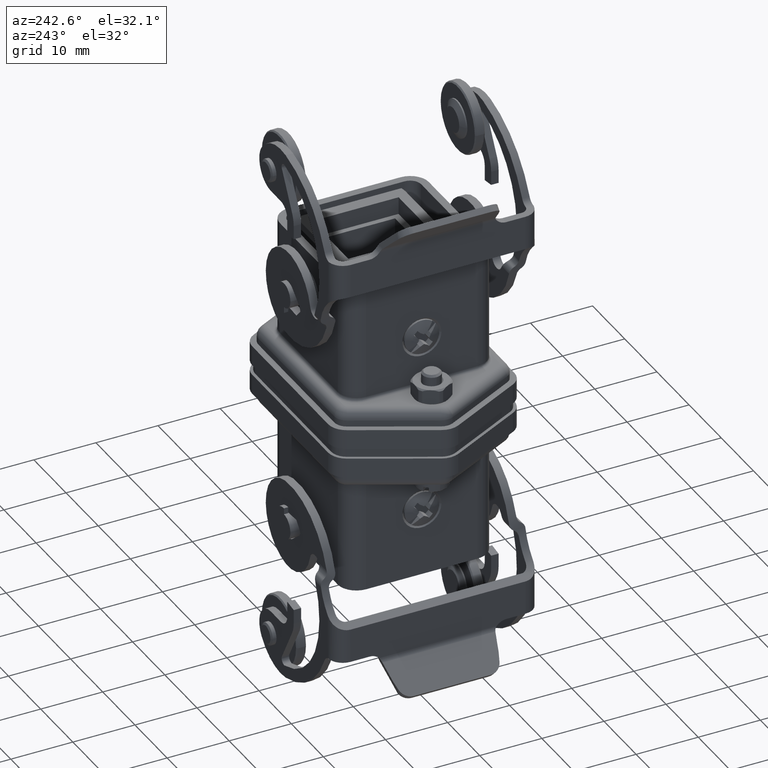
[diagram: clean part render]
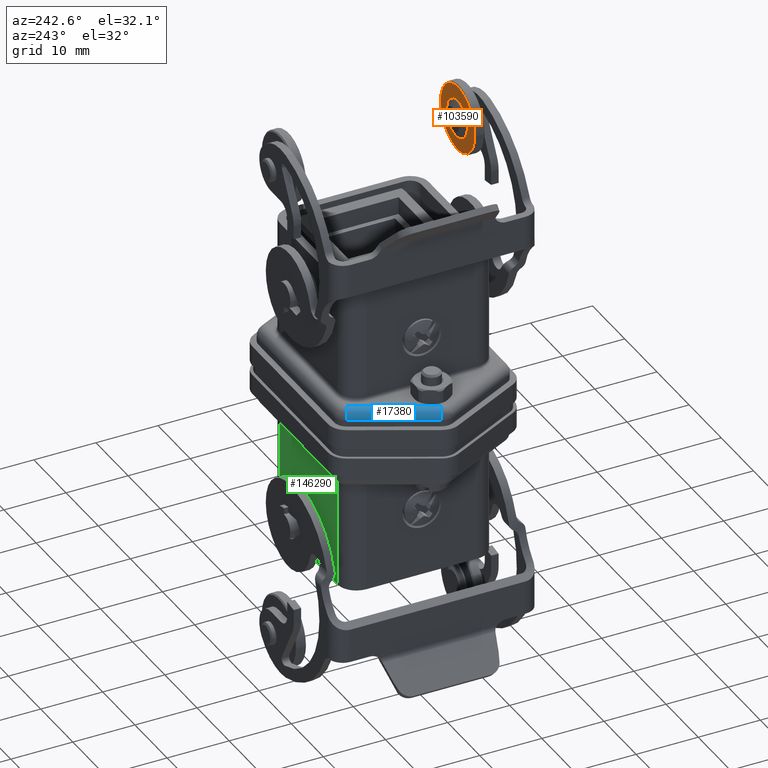
[diagram: same view with three faces highlighted in distinct colors, each labeled with its STEP entity id]
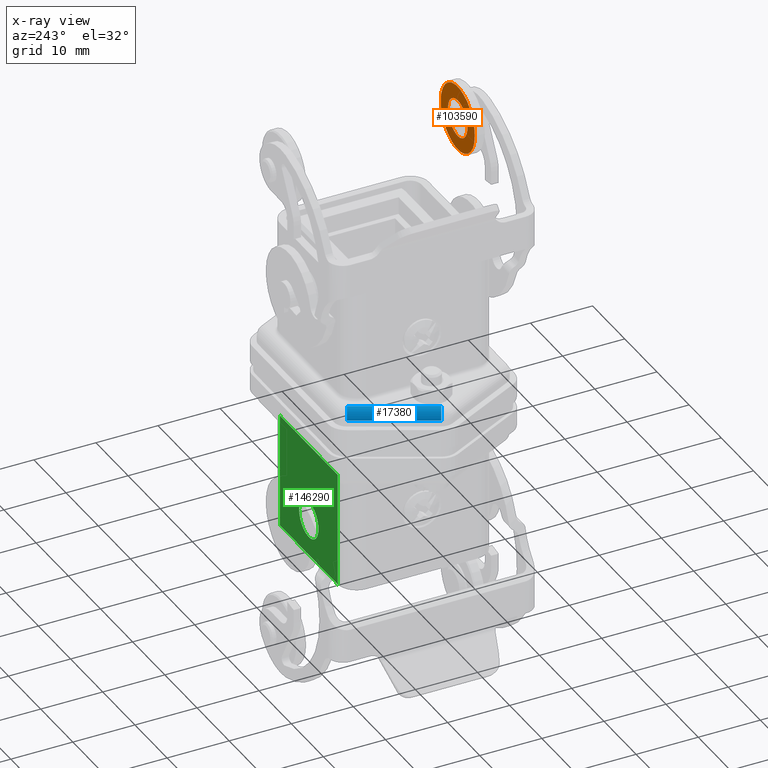
[diagram: x-ray of the same camera — body ghosted, the three highlighted faces saturated]
A machine part, auxiliary view with three faces highlighted in distinct colors.
The next image is the same camera in x-ray (body ghosted, the three faces saturated) — at least one of them is partly hidden behind the body in this view.
Their STEP definitions:

[orange] entity #103590 — the highlighted planar face has unit normal (0, -1, 0).
#10960=CARTESIAN_POINT('',(8.40000000008975,-13.5999999999103,19.6));
#10970=VERTEX_POINT('',#10960);
#11060=CARTESIAN_POINT('',(-2.20000000008978,-13.5999999999103,19.6));
#11070=VERTEX_POINT('',#11060);
#11100=CARTESIAN_POINT('',(3.1,-13.6,19.6));
#11110=DIRECTION('',(0.,-1.,0.));
#11120=DIRECTION('',(-1.,0.,0.));
#11130=AXIS2_PLACEMENT_3D('',#11100,#11110,#11120);
#11140=CIRCLE('',#11130,5.3);
#11150=EDGE_CURVE('',#10970,#11070,#11140,.T.);
#11790=CARTESIAN_POINT('',(3.1,-13.6,22.6));
#11800=VERTEX_POINT('',#11790);
#11830=CARTESIAN_POINT('',(3.1,-13.6,19.6));
#11840=DIRECTION('',(0.,-1.,0.));
#11850=DIRECTION('',(0.,0.,1.));
#11860=AXIS2_PLACEMENT_3D('',#11830,#11840,#11850);
#11870=CIRCLE('',#11860,3.);
#11880=CARTESIAN_POINT('',(3.1,-13.6,16.6));
#11890=VERTEX_POINT('',#11880);
#11900=EDGE_CURVE('',#11800,#11890,#11870,.T.);
#103440=CARTESIAN_POINT('',(3.1,-13.6,19.6));
#103450=DIRECTION('',(0.,-1.,0.));
#103460=DIRECTION('',(0.,0.,-1.));
#103470=AXIS2_PLACEMENT_3D('',#103440,#103450,#103460);
#103480=PLANE('',#103470);
#103490=EDGE_CURVE('',#11070,#10970,#11140,.T.);
#103500=ORIENTED_EDGE('',*,*,#103490,.F.);
#103510=ORIENTED_EDGE('',*,*,#11150,.F.);
#103520=EDGE_LOOP('',(#103510,#103500));
#103530=FACE_OUTER_BOUND('',#103520,.T.);
#103540=EDGE_CURVE('',#11890,#11800,#11870,.T.);
#103550=ORIENTED_EDGE('',*,*,#103540,.T.);
#103560=ORIENTED_EDGE('',*,*,#11900,.T.);
#103570=EDGE_LOOP('',(#103560,#103550));
#103580=FACE_BOUND('',#103570,.T.);
#103590=ADVANCED_FACE('',(#103530,#103580),#103480,.F.);

[blue] entity #17380 — the highlighted cylindrical surface (edge-blend (fillet) strip) has radius 1.5 mm, axis along (0.4581, 0.8889, 0).
#16970=CARTESIAN_POINT('',(-16.5555555555556,3.89404420197224,-14.5));
#16980=DIRECTION('',(0.458122847290852,0.888888888888889,1.02317E-32));
#16990=DIRECTION('',(-0.628539361054707,0.32394177193585,
0.707106781186549));
#17000=AXIS2_PLACEMENT_3D('',#16970,#16980,#16990);
#17010=CYLINDRICAL_SURFACE('',#17000,1.5);
#17020=CARTESIAN_POINT('',(-13.5931193393513,12.9162456945817,-14.5));
#17030=DIRECTION('',(-0.458122847290851,-0.888888888888889,0.));
#17040=VECTOR('',#17030,13.5);
#17050=LINE('',#17020,#17040);
#17060=CARTESIAN_POINT('',(-13.5931193393513,12.9162456945817,-14.5));
#17070=VERTEX_POINT('',#17060);
#17080=CARTESIAN_POINT('',(-19.7777777777778,0.916245694581701,-14.5));
#17090=VERTEX_POINT('',#17080);
#17100=EDGE_CURVE('',#17070,#17090,#17050,.T.);
#17110=ORIENTED_EDGE('',*,*,#17100,.T.);
#17120=CARTESIAN_POINT('',(-12.259786006018,12.2290614236454,-14.5));
#17130=DIRECTION('',(-0.458122847290852,-0.888888888888889,0.));
#17140=DIRECTION('',(0.,0.,1.));
#17150=AXIS2_PLACEMENT_3D('',#17120,#17130,#17140);
#17160=CIRCLE('',#17150,1.5);
#17170=CARTESIAN_POINT('',(-12.259786006018,12.2290614236454,-13.));
#17180=VERTEX_POINT('',#17170);
#17190=EDGE_CURVE('',#17180,#17070,#17160,.T.);
#17200=ORIENTED_EDGE('',*,*,#17190,.T.);
#17210=CARTESIAN_POINT('',(-18.4444444444445,0.229061423645427,-13.));
#17220=DIRECTION('',(0.458122847290852,0.888888888888889,0.));
#17230=VECTOR('',#17220,13.5);
#17240=LINE('',#17210,#17230);
#17250=CARTESIAN_POINT('',(-18.4444444444445,0.229061423645427,-13.));
#17260=VERTEX_POINT('',#17250);
#17270=EDGE_CURVE('',#17260,#17180,#17240,.T.);
#17280=ORIENTED_EDGE('',*,*,#17270,.T.);
#17290=CARTESIAN_POINT('',(-18.4444444444445,0.229061423645427,-14.5));
#17300=DIRECTION('',(-0.458122847290852,-0.888888888888889,0.));
#17310=DIRECTION('',(0.,0.,1.));
#17320=AXIS2_PLACEMENT_3D('',#17290,#17300,#17310);
#17330=CIRCLE('',#17320,1.5);
#17340=EDGE_CURVE('',#17260,#17090,#17330,.T.);
#17350=ORIENTED_EDGE('',*,*,#17340,.F.);
#17360=EDGE_LOOP('',(#17350,#17280,#17200,#17110));
#17370=FACE_OUTER_BOUND('',#17360,.T.);
#17380=ADVANCED_FACE('',(#17370),#17010,.T.);

[green] entity #146290 — the highlighted planar face has unit normal (0, 1, 0).
#122080=CARTESIAN_POINT('',(9.,12.,-45.));
#122090=VERTEX_POINT('',#122080);
#122120=CARTESIAN_POINT('',(9.,12.,-45.));
#122130=DIRECTION('',(-1.,0.,0.));
#122140=VECTOR('',#122130,18.);
#122150=LINE('',#122120,#122140);
#122160=CARTESIAN_POINT('',(-9.00000000000001,12.,-45.));
#122170=VERTEX_POINT('',#122160);
#122180=EDGE_CURVE('',#122090,#122170,#122150,.T.);
#144870=CARTESIAN_POINT('',(-9.00000000000001,12.,-26.5));
#144880=VERTEX_POINT('',#144870);
#145170=CARTESIAN_POINT('',(-9.00000000000001,12.,-26.5));
#145180=DIRECTION('',(0.,0.,-1.));
#145190=VECTOR('',#145180,18.5);
#145200=LINE('',#145170,#145190);
#145210=EDGE_CURVE('',#144880,#122170,#145200,.T.);
#145410=CARTESIAN_POINT('',(9.,12.,-26.5));
#145420=DIRECTION('',(-1.,0.,0.));
#145430=VECTOR('',#145420,18.);
#145440=LINE('',#145410,#145430);
#145450=CARTESIAN_POINT('',(9.,12.,-26.5));
#145460=VERTEX_POINT('',#145450);
#145470=EDGE_CURVE('',#145460,#144880,#145440,.T.);
#145710=CARTESIAN_POINT('',(9.,12.,-26.5));
#145720=DIRECTION('',(0.,0.,-1.));
#145730=VECTOR('',#145720,18.5);
#145740=LINE('',#145710,#145730);
#145750=EDGE_CURVE('',#145460,#122090,#145740,.T.);
#146030=CARTESIAN_POINT('',(9.,12.,-22.));
#146040=DIRECTION('',(0.,1.,0.));
#146050=DIRECTION('',(0.,0.,1.));
#146060=AXIS2_PLACEMENT_3D('',#146030,#146040,#146050);
#146070=PLANE('',#146060);
#146080=ORIENTED_EDGE('',*,*,#145210,.F.);
#146090=ORIENTED_EDGE('',*,*,#122180,.T.);
#146100=ORIENTED_EDGE('',*,*,#145750,.T.);
#146110=ORIENTED_EDGE('',*,*,#145470,.F.);
#146120=EDGE_LOOP('',(#146110,#146100,#146090,#146080));
#146130=FACE_OUTER_BOUND('',#146120,.T.);
#146140=CARTESIAN_POINT('',(-3.5527136788005E-15,12.,-39.));
#146150=DIRECTION('',(0.,-1.,0.));
#146160=DIRECTION('',(0.,0.,-1.));
#146170=AXIS2_PLACEMENT_3D('',#146140,#146150,#146160);
#146180=CIRCLE('',#146170,3.);
#146190=CARTESIAN_POINT('',(-2.99999999977566,11.9999999997756,-39.));
#146200=VERTEX_POINT('',#146190);
#146210=CARTESIAN_POINT('',(2.99999999977563,11.9999999997756,-39.));
#146220=VERTEX_POINT('',#146210);
#146230=EDGE_CURVE('',#146200,#146220,#146180,.T.);
#146240=ORIENTED_EDGE('',*,*,#146230,.T.);
#146250=EDGE_CURVE('',#146220,#146200,#146180,.T.);
#146260=ORIENTED_EDGE('',*,*,#146250,.T.);
#146270=EDGE_LOOP('',(#146260,#146240));
#146280=FACE_BOUND('',#146270,.T.);
#146290=ADVANCED_FACE('',(#146130,#146280),#146070,.T.);